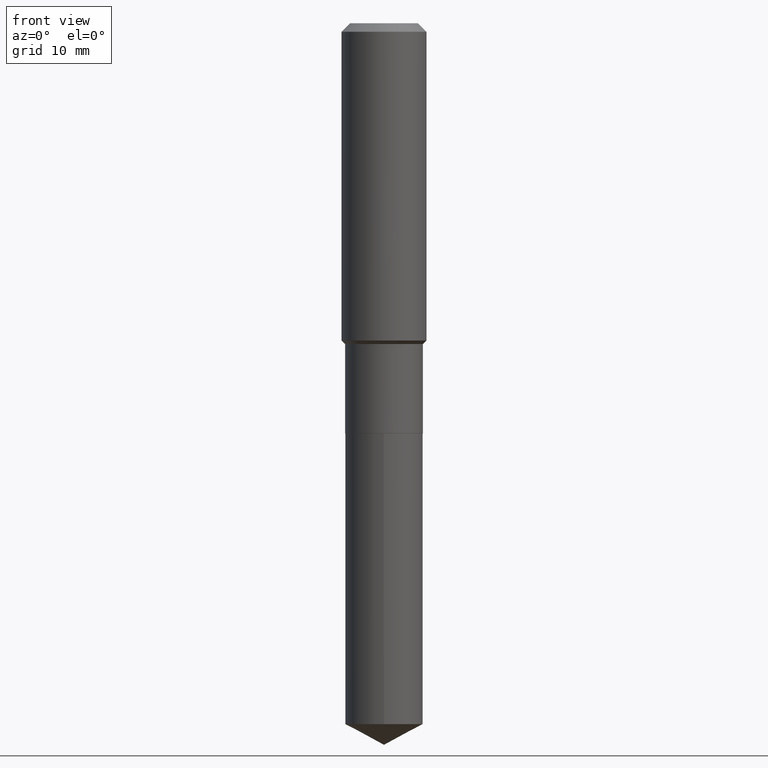
[diagram: clean part render]
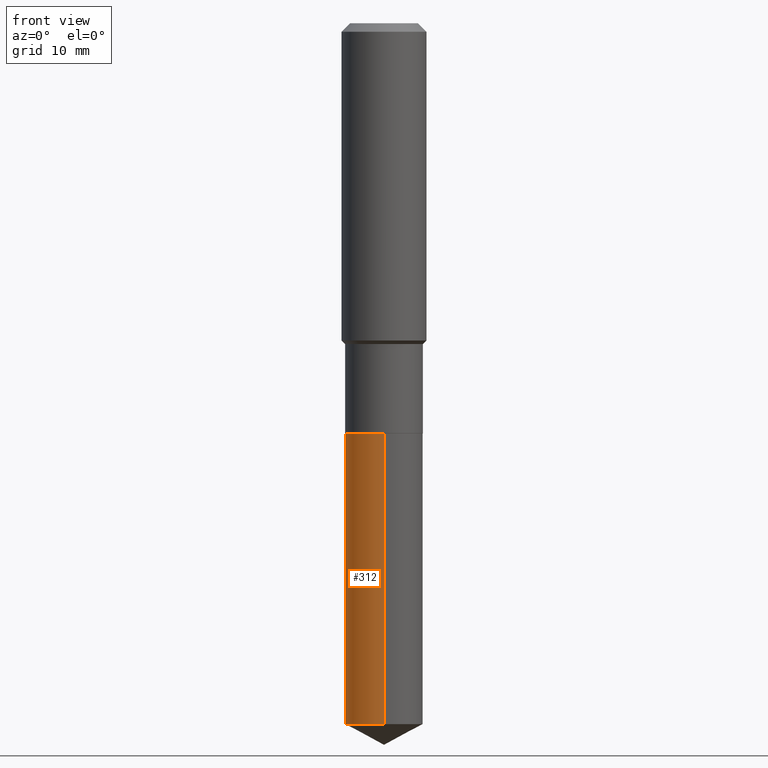
[diagram: same view with one face highlighted and labeled with its STEP entity id]
A machine part, front view. The second image highlights one B-rep face of the part: STEP entity #312.
In plain terms, the highlighted cylindrical surface (partial cylindrical patch) has radius 5.5004 mm, axis along (-0, 0, 1).
Its self-contained STEP definition (entity closure, byte-faithful):
#1 = LINE ( 'NONE', #334, #179 ) ;
#38 = DIRECTION ( 'NONE',  ( -2.445558120015569435E-29, 3.491353436354538463E-15, 1.000000000000000000 ) ) ;
#39 = VERTEX_POINT ( 'NONE', #91 ) ;
#88 = CIRCLE ( 'NONE', #285, 0.2165500000000000203 ) ;
#91 = CARTESIAN_POINT ( 'NONE',  ( -1.512160567852865370E-15, -0.2165500000000135927, -3.900558322573707493 ) ) ;
#119 = CARTESIAN_POINT ( 'NONE',  ( 5.583983472043140562E-29, -7.972448489114438042E-15, -2.283399999999999874 ) ) ;
#127 = AXIS2_PLACEMENT_3D ( 'NONE', #301, #295, #199 ) ;
#139 = VERTEX_POINT ( 'NONE', #222 ) ;
#149 = VERTEX_POINT ( 'NONE', #360 ) ;
#151 = CYLINDRICAL_SURFACE ( 'NONE', #127, 0.2165500000000000203 ) ;
#153 = DIRECTION ( 'NONE',  ( -6.982962677686265133E-15, -1.000000000000000000, 2.523064413451178124E-15 ) ) ;
#174 = DIRECTION ( 'NONE',  ( -2.445558120015569435E-29, 3.491353436354538463E-15, 1.000000000000000000 ) ) ;
#179 = VECTOR ( 'NONE', #184, 39.37007874015748143 ) ;
#182 = EDGE_CURVE ( 'NONE', #139, #299, #474, .T. ) ;
#184 = DIRECTION ( 'NONE',  ( -2.445558120015569435E-29, 3.491353436354538463E-15, 1.000000000000000000 ) ) ;
#195 = CIRCLE ( 'NONE', #422, 0.2165500000000000203 ) ;
#199 = DIRECTION ( 'NONE',  ( -6.982962677686265133E-15, -1.000000000000000000, 3.784596620176766988E-15 ) ) ;
#200 = EDGE_LOOP ( 'NONE', ( #441, #489, #267, #258 ) ) ;
#222 = CARTESIAN_POINT ( 'NONE',  ( 1.538680294288591957E-15, 0.2165499999999863368, -3.900558322573708381 ) ) ;
#253 = CARTESIAN_POINT ( 'NONE',  ( 1.538680294288552514E-15, 0.2165499999999920544, -2.283400000000000762 ) ) ;
#258 = ORIENTED_EDGE ( 'NONE', *, *, #351, .F. ) ;
#260 = CARTESIAN_POINT ( 'NONE',  ( 1.538680294288592549E-15, 0.2165499999999920544, -2.283400000000000762 ) ) ;
#267 = ORIENTED_EDGE ( 'NONE', *, *, #427, .T. ) ;
#285 = AXIS2_PLACEMENT_3D ( 'NONE', #414, #38, #153 ) ;
#287 = EDGE_CURVE ( 'NONE', #139, #39, #88, .T. ) ;
#295 = DIRECTION ( 'NONE',  ( -2.445558120015569435E-29, 3.491353436354538463E-15, 1.000000000000000000 ) ) ;
#299 = VERTEX_POINT ( 'NONE', #260 ) ;
#301 = CARTESIAN_POINT ( 'NONE',  ( 5.583983472043140562E-29, -7.972448489114438042E-15, -2.283399999999999874 ) ) ;
#312 = ADVANCED_FACE ( 'NONE', ( #408 ), #151, .T. ) ;
#334 = CARTESIAN_POINT ( 'NONE',  ( -1.512160567852905011E-15, -0.2165500000000079583, -2.283399999999998986 ) ) ;
#335 = VECTOR ( 'NONE', #174, 39.37007874015748143 ) ;
#351 = EDGE_CURVE ( 'NONE', #299, #149, #195, .T. ) ;
#360 = CARTESIAN_POINT ( 'NONE',  ( -1.512160567852905011E-15, -0.2165500000000079583, -2.283399999999998986 ) ) ;
#389 = DIRECTION ( 'NONE',  ( -2.445558120015569435E-29, 3.491353436354538463E-15, 1.000000000000000000 ) ) ;
#408 = FACE_OUTER_BOUND ( 'NONE', #200, .T. ) ;
#414 = CARTESIAN_POINT ( 'NONE',  ( 9.538838139164029954E-29, -1.361851975576149405E-14, -3.900558322573707937 ) ) ;
#422 = AXIS2_PLACEMENT_3D ( 'NONE', #119, #389, #467 ) ;
#427 = EDGE_CURVE ( 'NONE', #39, #149, #1, .T. ) ;
#441 = ORIENTED_EDGE ( 'NONE', *, *, #182, .F. ) ;
#467 = DIRECTION ( 'NONE',  ( -6.982962677686265133E-15, -1.000000000000000000, 3.784596620176766988E-15 ) ) ;
#474 = LINE ( 'NONE', #253, #335 ) ;
#489 = ORIENTED_EDGE ( 'NONE', *, *, #287, .T. ) ;